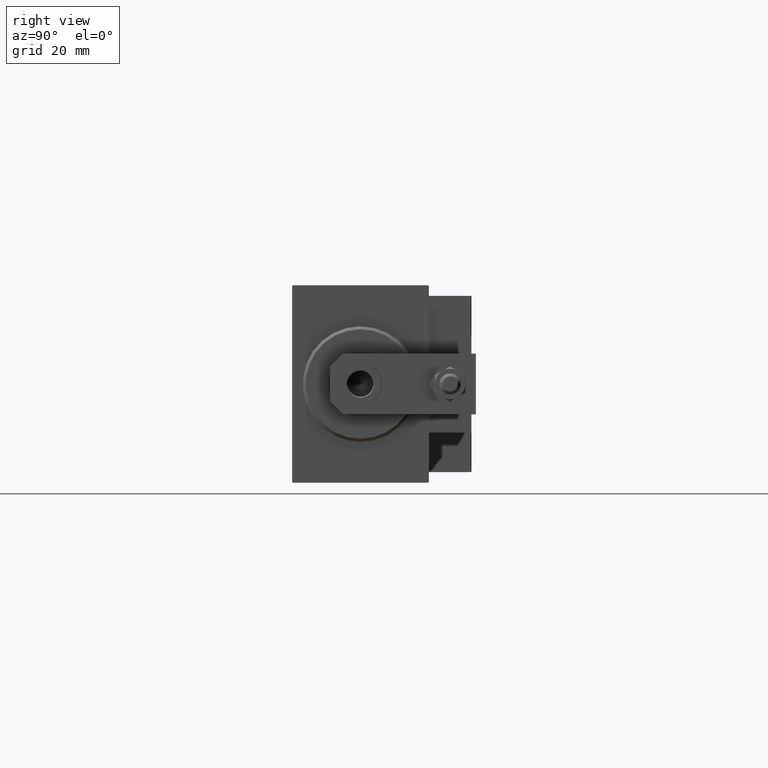
[diagram: clean part render]
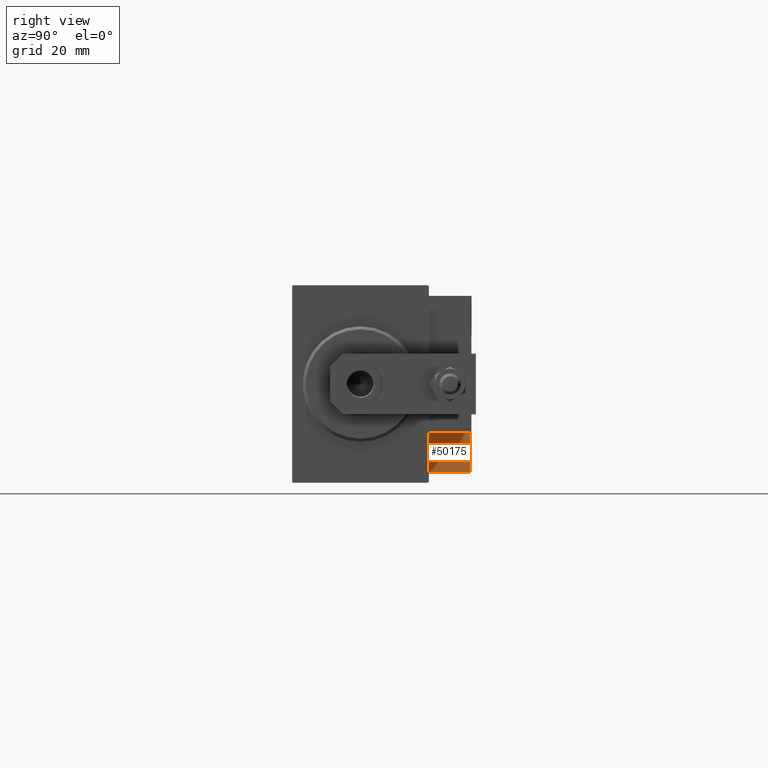
[diagram: same view with one face highlighted and labeled with its STEP entity id]
A machine part, right view. The second image highlights one B-rep face of the part: STEP entity #50175.
In plain terms, the highlighted planar face has unit normal (-1, -0, -0).
Its self-contained STEP definition (entity closure, byte-faithful):
#2627 = EDGE_LOOP ( 'NONE', ( #3707, #40442, #18298, #41360 ) ) ;
#3707 = ORIENTED_EDGE ( 'NONE', *, *, #15513, .F. ) ;
#5926 = VERTEX_POINT ( 'NONE', #33421 ) ;
#8001 = VERTEX_POINT ( 'NONE', #40931 ) ;
#8212 = EDGE_CURVE ( 'NONE', #5926, #47977, #9184, .T. ) ;
#8709 = CARTESIAN_POINT ( 'NONE',  ( 27.00000000000006395, 7.000000000000007994, 14.00000000000000000 ) ) ;
#9184 = LINE ( 'NONE', #44682, #19984 ) ;
#11328 = VECTOR ( 'NONE', #29251, 1000.000000000000000 ) ;
#15513 = EDGE_CURVE ( 'NONE', #8001, #47977, #32570, .T. ) ;
#16600 = DIRECTION ( 'NONE',  ( -1.000000000000000000, 0.000000000000000000, 0.000000000000000000 ) ) ;
#18298 = ORIENTED_EDGE ( 'NONE', *, *, #18851, .T. ) ;
#18851 = EDGE_CURVE ( 'NONE', #35109, #5926, #27217, .T. ) ;
#19913 = FACE_OUTER_BOUND ( 'NONE', #2627, .T. ) ;
#19984 = VECTOR ( 'NONE', #24927, 1000.000000000000000 ) ;
#20171 = CARTESIAN_POINT ( 'NONE',  ( 27.00000000000006395, 7.000000000000007994, 14.00000000000000000 ) ) ;
#24927 = DIRECTION ( 'NONE',  ( 0.000000000000000000, 1.000000000000000000, 0.000000000000000000 ) ) ;
#27217 = LINE ( 'NONE', #8709, #43875 ) ;
#28260 = CARTESIAN_POINT ( 'NONE',  ( 27.00000000000006395, 7.000000000000007994, 13.70000000000000107 ) ) ;
#29251 = DIRECTION ( 'NONE',  ( -0.000000000000000000, -0.000000000000000000, -1.000000000000000000 ) ) ;
#29259 = LINE ( 'NONE', #32578, #38559 ) ;
#32570 = LINE ( 'NONE', #41174, #11328 ) ;
#32578 = CARTESIAN_POINT ( 'NONE',  ( 27.00000000000006395, 7.000000000000007994, 13.70000000000000107 ) ) ;
#33077 = DIRECTION ( 'NONE',  ( -0.000000000000000000, -1.000000000000000000, -0.000000000000000000 ) ) ;
#33421 = CARTESIAN_POINT ( 'NONE',  ( 27.00000000000006395, 7.000000000000007994, 0.000000000000000000 ) ) ;
#34737 = CARTESIAN_POINT ( 'NONE',  ( 27.00000000000006395, 20.00000000000001776, 0.000000000000000000 ) ) ;
#35109 = VERTEX_POINT ( 'NONE', #28260 ) ;
#36381 = PLANE ( 'NONE',  #45177 ) ;
#38559 = VECTOR ( 'NONE', #33077, 1000.000000000000000 ) ;
#39396 = DIRECTION ( 'NONE',  ( -0.000000000000000000, -0.000000000000000000, -1.000000000000000000 ) ) ;
#39684 = DIRECTION ( 'NONE',  ( 0.000000000000000000, 0.000000000000000000, 1.000000000000000000 ) ) ;
#40442 = ORIENTED_EDGE ( 'NONE', *, *, #43253, .T. ) ;
#40931 = CARTESIAN_POINT ( 'NONE',  ( 27.00000000000006395, 20.00000000000001776, 13.70000000000000107 ) ) ;
#41174 = CARTESIAN_POINT ( 'NONE',  ( 27.00000000000006395, 20.00000000000001776, 14.00000000000000000 ) ) ;
#41360 = ORIENTED_EDGE ( 'NONE', *, *, #8212, .T. ) ;
#43253 = EDGE_CURVE ( 'NONE', #8001, #35109, #29259, .T. ) ;
#43875 = VECTOR ( 'NONE', #39396, 1000.000000000000000 ) ;
#44682 = CARTESIAN_POINT ( 'NONE',  ( 27.00000000000006395, 7.000000000000007994, 0.000000000000000000 ) ) ;
#45177 = AXIS2_PLACEMENT_3D ( 'NONE', #20171, #16600, #39684 ) ;
#47977 = VERTEX_POINT ( 'NONE', #34737 ) ;
#50175 = ADVANCED_FACE ( 'NONE', ( #19913 ), #36381, .F. ) ;